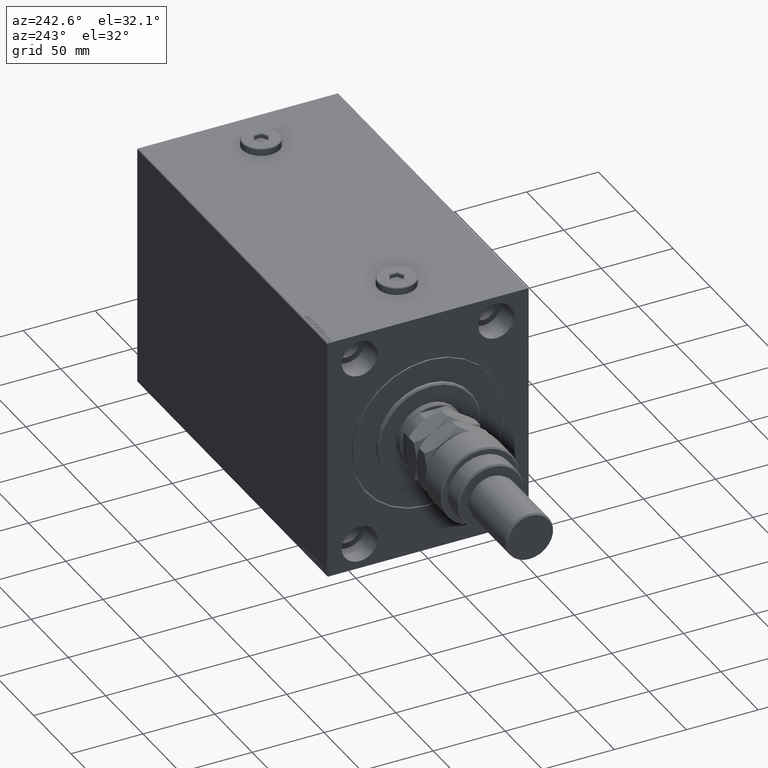
[diagram: clean part render]
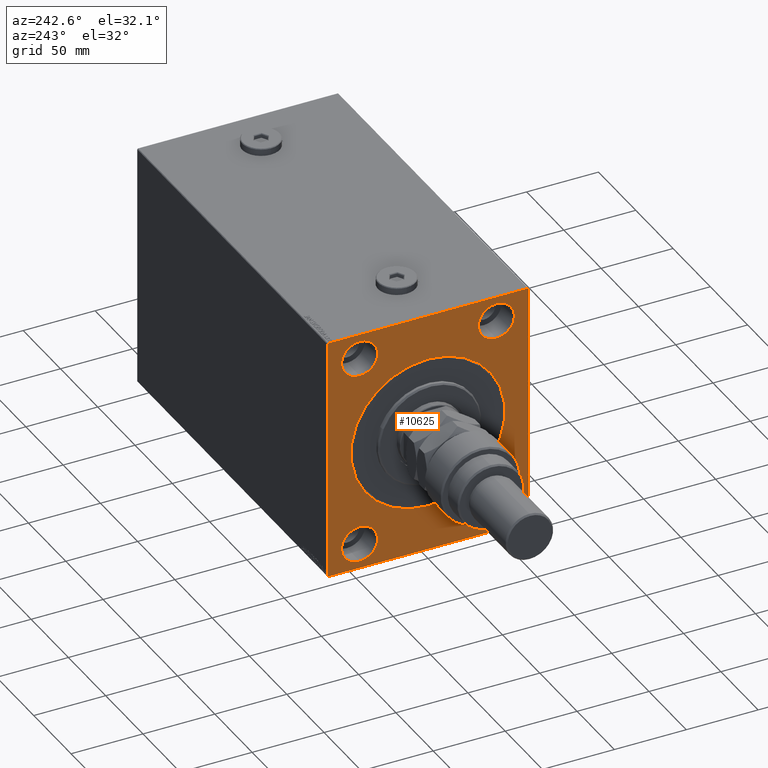
[diagram: same view with one face highlighted and labeled with its STEP entity id]
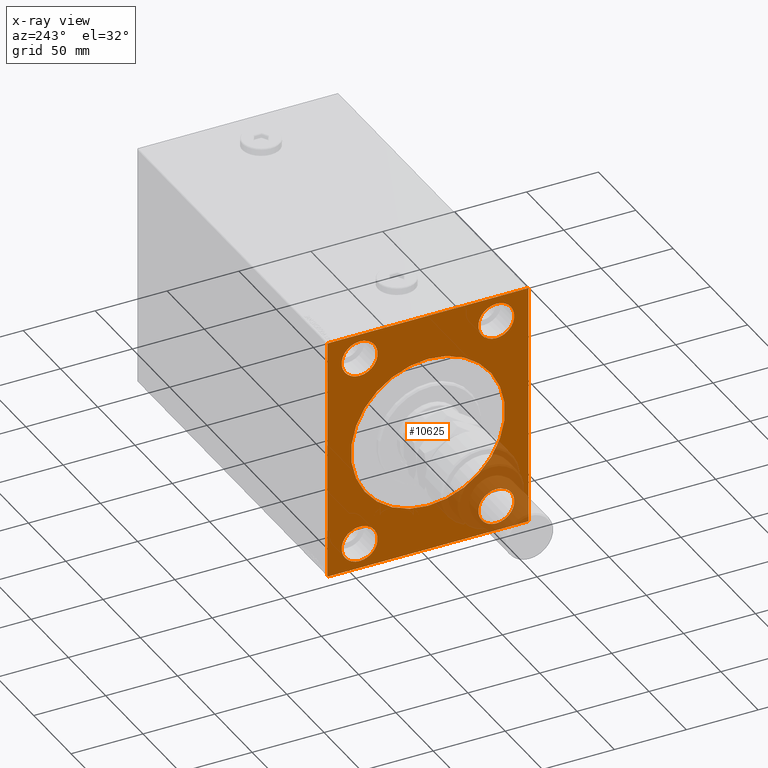
[diagram: x-ray of the same camera — body ghosted, the highlighted face saturated]
A machine part, auxiliary view. The second image highlights one B-rep face of the part: STEP entity #10625.
The next image is the same camera in x-ray: the body ghosted, the highlighted face saturated — about 14% of this face is hidden behind the body in this view.
In plain terms, the highlighted planar face has unit normal (1, 0, 0).
Its self-contained STEP definition (entity closure, byte-faithful):
#134 = CARTESIAN_POINT ( 'NONE',  ( 0.000000000000000000, 47.50000000000000711, -67.50000000000000000 ) ) ;
#972 = VERTEX_POINT ( 'NONE', #14500 ) ;
#1659 = VERTEX_POINT ( 'NONE', #24755 ) ;
#1772 = CIRCLE ( 'NONE', #5658, 12.50000000000001066 ) ;
#2252 = DIRECTION ( 'NONE',  ( -1.000000000000000000, 0.000000000000000000, 0.000000000000000000 ) ) ;
#2364 = VERTEX_POINT ( 'NONE', #30240 ) ;
#2864 = EDGE_CURVE ( 'NONE', #16448, #29228, #36946, .T. ) ;
#3153 = ORIENTED_EDGE ( 'NONE', *, *, #38076, .F. ) ;
#3226 = ORIENTED_EDGE ( 'NONE', *, *, #10438, .T. ) ;
#4064 = FACE_BOUND ( 'NONE', #40719, .T. ) ;
#4210 = AXIS2_PLACEMENT_3D ( 'NONE', #41937, #16301, #34600 ) ;
#4416 = CARTESIAN_POINT ( 'NONE',  ( 0.000000000000000000, 69.50000000000012790, -85.00000000000001421 ) ) ;
#4431 = VERTEX_POINT ( 'NONE', #36101 ) ;
#4647 = VERTEX_POINT ( 'NONE', #45850 ) ;
#5658 = AXIS2_PLACEMENT_3D ( 'NONE', #23580, #34562, #12588 ) ;
#6157 = CARTESIAN_POINT ( 'NONE',  ( 0.000000000000000000, 47.50000000000000711, -67.50000000000000000 ) ) ;
#6204 = VECTOR ( 'NONE', #38885, 1000.000000000000114 ) ;
#6588 = AXIS2_PLACEMENT_3D ( 'NONE', #21262, #2252, #40050 ) ;
#7087 = LINE ( 'NONE', #25636, #23770 ) ;
#7515 = ORIENTED_EDGE ( 'NONE', *, *, #8603, .T. ) ;
#7572 = VECTOR ( 'NONE', #9185, 1000.000000000000000 ) ;
#8378 = ORIENTED_EDGE ( 'NONE', *, *, #46970, .T. ) ;
#8603 = EDGE_CURVE ( 'NONE', #47980, #26980, #32634, .T. ) ;
#8940 = ORIENTED_EDGE ( 'NONE', *, *, #15301, .F. ) ;
#9108 = LINE ( 'NONE', #38654, #6204 ) ;
#9185 = DIRECTION ( 'NONE',  ( 0.000000000000000000, 1.000000000000000000, 9.912705577010325549E-17 ) ) ;
#10074 = EDGE_CURVE ( 'NONE', #22413, #972, #42476, .T. ) ;
#10213 = DIRECTION ( 'NONE',  ( -1.000000000000000000, 0.000000000000000000, 0.000000000000000000 ) ) ;
#10438 = EDGE_CURVE ( 'NONE', #40395, #28433, #42886, .T. ) ;
#10545 = CARTESIAN_POINT ( 'NONE',  ( 0.000000000000000000, 70.00000000000002842, -84.50000000000009948 ) ) ;
#10625 = ADVANCED_FACE ( 'NONE', ( #4064, #42119, #33820, #45295, #23561, #37733 ), #11613, .F. ) ;
#10757 = DIRECTION ( 'NONE',  ( 0.000000000000000000, 0.000000000000000000, -1.000000000000000000 ) ) ;
#11484 = LINE ( 'NONE', #18815, #31528 ) ;
#11613 = PLANE ( 'NONE',  #19101 ) ;
#11807 = CARTESIAN_POINT ( 'NONE',  ( 0.000000000000000000, -69.50000000000001421, -85.00000000000002842 ) ) ;
#11896 = VERTEX_POINT ( 'NONE', #14251 ) ;
#11910 = EDGE_CURVE ( 'NONE', #4647, #11896, #46407, .T. ) ;
#12042 = ORIENTED_EDGE ( 'NONE', *, *, #17507, .T. ) ;
#12094 = DIRECTION ( 'NONE',  ( 1.000000000000000000, 0.000000000000000000, 0.000000000000000000 ) ) ;
#12588 = DIRECTION ( 'NONE',  ( 0.000000000000000000, 0.000000000000000000, 1.000000000000000000 ) ) ;
#13131 = CARTESIAN_POINT ( 'NONE',  ( 0.000000000000000000, 0.000000000000000000, 53.50000000000002842 ) ) ;
#13312 = ORIENTED_EDGE ( 'NONE', *, *, #30574, .F. ) ;
#13632 = CARTESIAN_POINT ( 'NONE',  ( 0.000000000000000000, -47.49999999999997868, 67.50000000000000000 ) ) ;
#13686 = CIRCLE ( 'NONE', #32403, 12.49999999999999645 ) ;
#14175 = CARTESIAN_POINT ( 'NONE',  ( 0.000000000000000000, -47.49999999999999289, -55.00000000000000711 ) ) ;
#14251 = CARTESIAN_POINT ( 'NONE',  ( 0.000000000000000000, 47.50000000000000711, -55.00000000000000711 ) ) ;
#14500 = CARTESIAN_POINT ( 'NONE',  ( 0.000000000000000000, -47.49999999999997868, 80.00000000000001421 ) ) ;
#14617 = CARTESIAN_POINT ( 'NONE',  ( 0.000000000000000000, 0.000000000000000000, 0.000000000000000000 ) ) ;
#15301 = EDGE_CURVE ( 'NONE', #40395, #26980, #46283, .T. ) ;
#16301 = DIRECTION ( 'NONE',  ( 1.000000000000000000, 0.000000000000000000, 0.000000000000000000 ) ) ;
#16448 = VERTEX_POINT ( 'NONE', #13131 ) ;
#17257 = CARTESIAN_POINT ( 'NONE',  ( 0.000000000000000000, 6.551860375438343048E-15, -53.50000000000002842 ) ) ;
#17507 = EDGE_CURVE ( 'NONE', #4431, #19034, #35522, .T. ) ;
#17737 = DIRECTION ( 'NONE',  ( 0.000000000000000000, -8.163404592832031500E-17, 1.000000000000000000 ) ) ;
#17921 = CARTESIAN_POINT ( 'NONE',  ( 0.000000000000000000, -47.49999999999997868, 67.50000000000000000 ) ) ;
#18081 = VERTEX_POINT ( 'NONE', #43272 ) ;
#18668 = ORIENTED_EDGE ( 'NONE', *, *, #11910, .F. ) ;
#18815 = CARTESIAN_POINT ( 'NONE',  ( 0.000000000000000000, -69.99999999999998579, 84.99999999999998579 ) ) ;
#19034 = VERTEX_POINT ( 'NONE', #41320 ) ;
#19101 = AXIS2_PLACEMENT_3D ( 'NONE', #37979, #12094, #41393 ) ;
#19767 = ORIENTED_EDGE ( 'NONE', *, *, #24778, .F. ) ;
#19945 = VERTEX_POINT ( 'NONE', #25273 ) ;
#20134 = ORIENTED_EDGE ( 'NONE', *, *, #35630, .F. ) ;
#20155 = EDGE_LOOP ( 'NONE', ( #43504, #18668 ) ) ;
#20800 = DIRECTION ( 'NONE',  ( -1.000000000000000000, 0.000000000000000000, 0.000000000000000000 ) ) ;
#20868 = VECTOR ( 'NONE', #24060, 1000.000000000000114 ) ;
#21262 = CARTESIAN_POINT ( 'NONE',  ( 0.000000000000000000, 47.50000000000000711, 67.50000000000000000 ) ) ;
#22114 = CIRCLE ( 'NONE', #39268, 12.49999999999999645 ) ;
#22357 = CIRCLE ( 'NONE', #37963, 53.50000000000002842 ) ;
#22413 = VERTEX_POINT ( 'NONE', #45583 ) ;
#22641 = ORIENTED_EDGE ( 'NONE', *, *, #33988, .F. ) ;
#23005 = AXIS2_PLACEMENT_3D ( 'NONE', #13632, #10213, #39514 ) ;
#23561 = FACE_BOUND ( 'NONE', #37433, .T. ) ;
#23580 = CARTESIAN_POINT ( 'NONE',  ( 0.000000000000000000, 47.50000000000000711, 67.50000000000000000 ) ) ;
#23770 = VECTOR ( 'NONE', #29048, 1000.000000000000000 ) ;
#24060 = DIRECTION ( 'NONE',  ( -0.000000000000000000, 0.7071067811865474617, 0.7071067811865474617 ) ) ;
#24498 = DIRECTION ( 'NONE',  ( 0.000000000000000000, 0.000000000000000000, 1.000000000000000000 ) ) ;
#24755 = CARTESIAN_POINT ( 'NONE',  ( 0.000000000000000000, 47.50000000000000711, 80.00000000000001421 ) ) ;
#24778 = EDGE_CURVE ( 'NONE', #1659, #18081, #1772, .T. ) ;
#25150 = EDGE_LOOP ( 'NONE', ( #28448, #38230 ) ) ;
#25273 = CARTESIAN_POINT ( 'NONE',  ( 0.000000000000000000, -47.49999999999999289, -80.00000000000000000 ) ) ;
#25291 = LINE ( 'NONE', #44578, #33216 ) ;
#25361 = AXIS2_PLACEMENT_3D ( 'NONE', #134, #28658, #43548 ) ;
#25636 = CARTESIAN_POINT ( 'NONE',  ( 0.000000000000000000, 70.00000000000001421, 85.00000000000000000 ) ) ;
#26108 = AXIS2_PLACEMENT_3D ( 'NONE', #17921, #47692, #24498 ) ;
#26379 = CARTESIAN_POINT ( 'NONE',  ( 0.000000000000000000, -47.49999999999999289, -67.50000000000000000 ) ) ;
#26936 = DIRECTION ( 'NONE',  ( -1.000000000000000000, 0.000000000000000000, 0.000000000000000000 ) ) ;
#26980 = VERTEX_POINT ( 'NONE', #4416 ) ;
#27670 = VECTOR ( 'NONE', #42646, 1000.000000000000114 ) ;
#27734 = CARTESIAN_POINT ( 'NONE',  ( 0.000000000000000000, -69.99999999999998579, -85.00000000000002842 ) ) ;
#27743 = VECTOR ( 'NONE', #29210, 999.9999999999998863 ) ;
#27758 = CARTESIAN_POINT ( 'NONE',  ( 0.000000000000000000, -69.50000000000001421, -85.00000000000002842 ) ) ;
#28433 = VERTEX_POINT ( 'NONE', #45781 ) ;
#28448 = ORIENTED_EDGE ( 'NONE', *, *, #31235, .F. ) ;
#28658 = DIRECTION ( 'NONE',  ( -1.000000000000000000, 0.000000000000000000, 0.000000000000000000 ) ) ;
#28851 = EDGE_CURVE ( 'NONE', #30724, #19945, #22114, .T. ) ;
#29048 = DIRECTION ( 'NONE',  ( 0.000000000000000000, -1.000000000000000000, -9.912705577010325549E-17 ) ) ;
#29210 = DIRECTION ( 'NONE',  ( 0.000000000000000000, -0.7071067811865376918, -0.7071067811865574537 ) ) ;
#29228 = VERTEX_POINT ( 'NONE', #17257 ) ;
#29502 = DIRECTION ( 'NONE',  ( 1.000000000000000000, 0.000000000000000000, 0.000000000000000000 ) ) ;
#30240 = CARTESIAN_POINT ( 'NONE',  ( 0.000000000000000000, 70.00000000000001421, 84.50000000000001421 ) ) ;
#30574 = EDGE_CURVE ( 'NONE', #18081, #1659, #34645, .T. ) ;
#30642 = EDGE_CURVE ( 'NONE', #4431, #28433, #11484, .T. ) ;
#30724 = VERTEX_POINT ( 'NONE', #14175 ) ;
#31235 = EDGE_CURVE ( 'NONE', #972, #22413, #34684, .T. ) ;
#31278 = EDGE_LOOP ( 'NONE', ( #38498, #12042, #20134, #8378, #22641, #7515, #8940, #3226 ) ) ;
#31528 = VECTOR ( 'NONE', #10757, 1000.000000000000000 ) ;
#32403 = AXIS2_PLACEMENT_3D ( 'NONE', #26379, #37380, #44454 ) ;
#32634 = LINE ( 'NONE', #47769, #27743 ) ;
#33216 = VECTOR ( 'NONE', #17737, 1000.000000000000000 ) ;
#33727 = ORIENTED_EDGE ( 'NONE', *, *, #28851, .F. ) ;
#33820 = FACE_BOUND ( 'NONE', #25150, .T. ) ;
#33988 = EDGE_CURVE ( 'NONE', #47980, #2364, #25291, .T. ) ;
#34021 = DIRECTION ( 'NONE',  ( 0.000000000000000000, 0.000000000000000000, 1.000000000000000000 ) ) ;
#34496 = CARTESIAN_POINT ( 'NONE',  ( 0.000000000000000000, -47.49999999999999289, -67.50000000000000000 ) ) ;
#34562 = DIRECTION ( 'NONE',  ( -1.000000000000000000, 0.000000000000000000, 0.000000000000000000 ) ) ;
#34600 = DIRECTION ( 'NONE',  ( 0.000000000000000000, 0.000000000000000000, -1.000000000000000000 ) ) ;
#34645 = CIRCLE ( 'NONE', #6588, 12.50000000000001066 ) ;
#34684 = CIRCLE ( 'NONE', #26108, 12.50000000000001066 ) ;
#35522 = LINE ( 'NONE', #42857, #20868 ) ;
#35630 = EDGE_CURVE ( 'NONE', #39194, #19034, #7087, .T. ) ;
#35976 = ORIENTED_EDGE ( 'NONE', *, *, #2864, .T. ) ;
#36101 = CARTESIAN_POINT ( 'NONE',  ( 0.000000000000000000, -69.99999999999998579, 84.50000000000001421 ) ) ;
#36946 = CIRCLE ( 'NONE', #4210, 53.50000000000002842 ) ;
#37380 = DIRECTION ( 'NONE',  ( -1.000000000000000000, 0.000000000000000000, 0.000000000000000000 ) ) ;
#37433 = EDGE_LOOP ( 'NONE', ( #33727, #3153 ) ) ;
#37509 = ORIENTED_EDGE ( 'NONE', *, *, #39776, .T. ) ;
#37733 = FACE_OUTER_BOUND ( 'NONE', #31278, .T. ) ;
#37963 = AXIS2_PLACEMENT_3D ( 'NONE', #14617, #29502, #40735 ) ;
#37979 = CARTESIAN_POINT ( 'NONE',  ( 0.000000000000000000, 0.000000000000000000, 0.000000000000000000 ) ) ;
#38076 = EDGE_CURVE ( 'NONE', #19945, #30724, #13686, .T. ) ;
#38230 = ORIENTED_EDGE ( 'NONE', *, *, #10074, .F. ) ;
#38498 = ORIENTED_EDGE ( 'NONE', *, *, #30642, .F. ) ;
#38654 = CARTESIAN_POINT ( 'NONE',  ( 0.000000000000000000, 69.50000000000004263, 85.00000000000000000 ) ) ;
#38885 = DIRECTION ( 'NONE',  ( -0.000000000000000000, 0.7071067811865376918, -0.7071067811865573427 ) ) ;
#38926 = AXIS2_PLACEMENT_3D ( 'NONE', #6157, #20800, #46436 ) ;
#39194 = VERTEX_POINT ( 'NONE', #45291 ) ;
#39268 = AXIS2_PLACEMENT_3D ( 'NONE', #34496, #26936, #34021 ) ;
#39514 = DIRECTION ( 'NONE',  ( 0.000000000000000000, 0.000000000000000000, 1.000000000000000000 ) ) ;
#39776 = EDGE_CURVE ( 'NONE', #29228, #16448, #22357, .T. ) ;
#40050 = DIRECTION ( 'NONE',  ( 0.000000000000000000, 0.000000000000000000, 1.000000000000000000 ) ) ;
#40395 = VERTEX_POINT ( 'NONE', #11807 ) ;
#40719 = EDGE_LOOP ( 'NONE', ( #35976, #37509 ) ) ;
#40735 = DIRECTION ( 'NONE',  ( 0.000000000000000000, 0.000000000000000000, -1.000000000000000000 ) ) ;
#41320 = CARTESIAN_POINT ( 'NONE',  ( 0.000000000000000000, -69.50000000000001421, 84.99999999999998579 ) ) ;
#41393 = DIRECTION ( 'NONE',  ( 0.000000000000000000, 0.000000000000000000, -1.000000000000000000 ) ) ;
#41937 = CARTESIAN_POINT ( 'NONE',  ( 0.000000000000000000, 0.000000000000000000, 0.000000000000000000 ) ) ;
#42119 = FACE_BOUND ( 'NONE', #20155, .T. ) ;
#42476 = CIRCLE ( 'NONE', #23005, 12.50000000000001066 ) ;
#42646 = DIRECTION ( 'NONE',  ( -0.000000000000000000, -0.7071067811865376918, 0.7071067811865573427 ) ) ;
#42857 = CARTESIAN_POINT ( 'NONE',  ( 0.000000000000000000, -69.99999999999998579, 84.50000000000001421 ) ) ;
#42886 = LINE ( 'NONE', #27758, #27670 ) ;
#43272 = CARTESIAN_POINT ( 'NONE',  ( 0.000000000000000000, 47.50000000000000711, 55.00000000000000000 ) ) ;
#43504 = ORIENTED_EDGE ( 'NONE', *, *, #46866, .F. ) ;
#43548 = DIRECTION ( 'NONE',  ( 0.000000000000000000, 0.000000000000000000, 1.000000000000000000 ) ) ;
#43821 = EDGE_LOOP ( 'NONE', ( #19767, #13312 ) ) ;
#44401 = CIRCLE ( 'NONE', #38926, 12.49999999999999645 ) ;
#44454 = DIRECTION ( 'NONE',  ( 0.000000000000000000, 0.000000000000000000, 1.000000000000000000 ) ) ;
#44578 = CARTESIAN_POINT ( 'NONE',  ( 0.000000000000000000, 70.00000000000002842, -85.00000000000001421 ) ) ;
#45291 = CARTESIAN_POINT ( 'NONE',  ( 0.000000000000000000, 69.50000000000004263, 85.00000000000000000 ) ) ;
#45295 = FACE_BOUND ( 'NONE', #43821, .T. ) ;
#45583 = CARTESIAN_POINT ( 'NONE',  ( 0.000000000000000000, -47.49999999999997868, 55.00000000000000000 ) ) ;
#45781 = CARTESIAN_POINT ( 'NONE',  ( 0.000000000000000000, -69.99999999999998579, -84.50000000000004263 ) ) ;
#45850 = CARTESIAN_POINT ( 'NONE',  ( 0.000000000000000000, 47.50000000000000711, -80.00000000000000000 ) ) ;
#46283 = LINE ( 'NONE', #27734, #7572 ) ;
#46407 = CIRCLE ( 'NONE', #25361, 12.49999999999999645 ) ;
#46436 = DIRECTION ( 'NONE',  ( 0.000000000000000000, 0.000000000000000000, 1.000000000000000000 ) ) ;
#46866 = EDGE_CURVE ( 'NONE', #11896, #4647, #44401, .T. ) ;
#46970 = EDGE_CURVE ( 'NONE', #39194, #2364, #9108, .T. ) ;
#47692 = DIRECTION ( 'NONE',  ( -1.000000000000000000, 0.000000000000000000, 0.000000000000000000 ) ) ;
#47769 = CARTESIAN_POINT ( 'NONE',  ( 0.000000000000000000, 70.00000000000002842, -84.50000000000009948 ) ) ;
#47980 = VERTEX_POINT ( 'NONE', #10545 ) ;